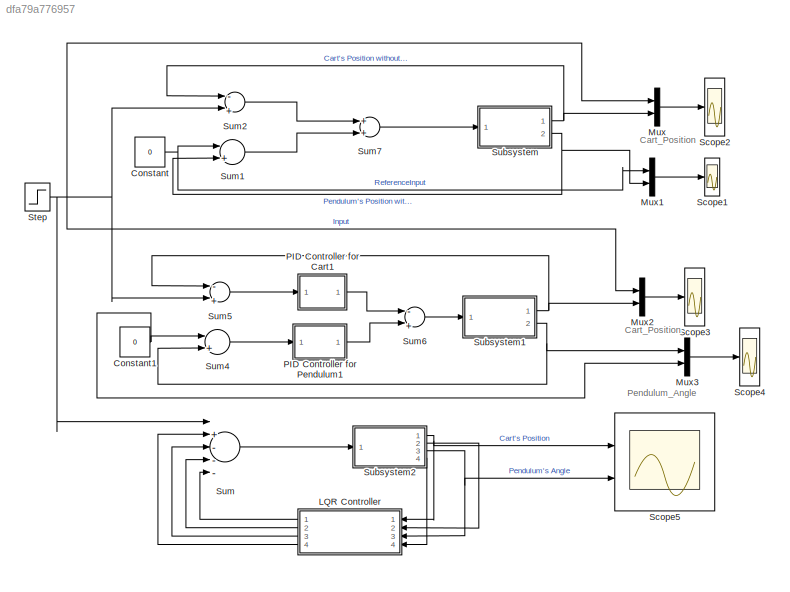
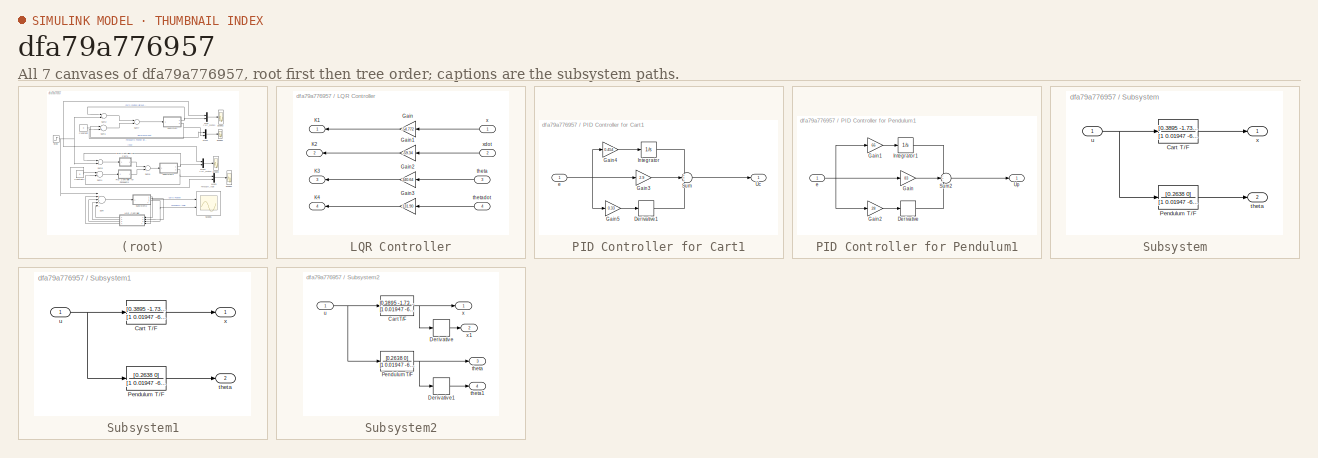
[diagram: thumbnail index - all 7 canvases of the model, root first then tree order]
MODEL slx_dfa79a776957
KIND model
BLOCK [Constant] Constant
  Value = 0
BLOCK [Constant] Constant1
  Value = 0
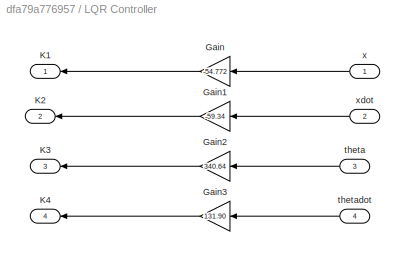
BLOCK [SubSystem] LQR Controller
  Ports = [4, 4]
  RequestExecContextInheritance = off
BLOCK [Gain] LQR Controller/Gain
  Gain = -54.772
  OutDataTypeStr = Inherit: Inherit via internal rule
  ParamDataTypeStr = Inherit: Inherit via internal rule
  SaturateOnIntegerOverflow = off
BLOCK [Gain] LQR Controller/Gain1
  Gain = -59.34
  OutDataTypeStr = Inherit: Inherit via internal rule
  ParamDataTypeStr = Inherit: Inherit via internal rule
  SaturateOnIntegerOverflow = off
BLOCK [Gain] LQR Controller/Gain2
  Gain = 340.64
  OutDataTypeStr = Inherit: Inherit via internal rule
  ParamDataTypeStr = Inherit: Inherit via internal rule
  SaturateOnIntegerOverflow = off
BLOCK [Gain] LQR Controller/Gain3
  Gain = 131.90
  OutDataTypeStr = Inherit: Inherit via internal rule
  ParamDataTypeStr = Inherit: Inherit via internal rule
  SaturateOnIntegerOverflow = off
BLOCK [Outport] LQR Controller/K1
  IconDisplay = Port number
BLOCK [Outport] LQR Controller/K2
  IconDisplay = Port number
  Port = 2
BLOCK [Outport] LQR Controller/K3
  IconDisplay = Port number
  Port = 3
BLOCK [Outport] LQR Controller/K4
  IconDisplay = Port number
  Port = 4
BLOCK [Inport] LQR Controller/theta
  IconDisplay = Port number
  Port = 3
BLOCK [Inport] LQR Controller/thetadot
  IconDisplay = Port number
  Port = 4
BLOCK [Inport] LQR Controller/x
  IconDisplay = Port number
BLOCK [Inport] LQR Controller/xdot
  IconDisplay = Port number
  Port = 2
BLOCK [Mux] Mux
  DisplayOption = bar
  Inputs = 2
  Ports = [2, 1]
BLOCK [Mux] Mux1
  DisplayOption = bar
  Inputs = 2
  Ports = [2, 1]
BLOCK [Mux] Mux2
  DisplayOption = bar
  Inputs = 2
  Ports = [2, 1]
BLOCK [Mux] Mux3
  DisplayOption = bar
  Inputs = 2
  Ports = [2, 1]
BLOCK [SubSystem] PID Controller for Cart1
  Ports = [1, 1]
  RequestExecContextInheritance = off
BLOCK [Derivative] PID Controller for Cart1/Derivative1
BLOCK [Gain] PID Controller for Cart1/Gain3
  Gain = 2.9
  OutDataTypeStr = Inherit: Inherit via internal rule
  ParamDataTypeStr = Inherit: Inherit via internal rule
  SaturateOnIntegerOverflow = off
BLOCK [Gain] PID Controller for Cart1/Gain4
  Gain = 0.454
  OutDataTypeStr = Inherit: Inherit via internal rule
  ParamDataTypeStr = Inherit: Inherit via internal rule
  SaturateOnIntegerOverflow = off
BLOCK [Gain] PID Controller for Cart1/Gain5
  Gain = 0.33
  OutDataTypeStr = Inherit: Inherit via internal rule
  ParamDataTypeStr = Inherit: Inherit via internal rule
  SaturateOnIntegerOverflow = off
BLOCK [Integrator] PID Controller for Cart1/Integrator
  Ports = [1, 1]
BLOCK [Sum] PID Controller for Cart1/Sum
  IconShape = round
  InputSameDT = off
  Inputs = +++
  OutDataTypeStr = Inherit: Inherit via internal rule
  Ports = [3, 1]
  SaturateOnIntegerOverflow = off
BLOCK [Outport] PID Controller for Cart1/Uc
  IconDisplay = Port number
BLOCK [Inport] PID Controller for Cart1/e
  IconDisplay = Port number
BLOCK [SubSystem] PID Controller for Pendulum1
  Ports = [1, 1]
  RequestExecContextInheritance = off
BLOCK [Derivative] PID Controller for Pendulum1/Derivative
BLOCK [Gain] PID Controller for Pendulum1/Gain
  Gain = 83
  OutDataTypeStr = Inherit: Inherit via internal rule
  ParamDataTypeStr = Inherit: Inherit via internal rule
  SaturateOnIntegerOverflow = off
BLOCK [Gain] PID Controller for Pendulum1/Gain1
  Gain = 66
  OutDataTypeStr = Inherit: Inherit via internal rule
  ParamDataTypeStr = Inherit: Inherit via internal rule
  SaturateOnIntegerOverflow = off
BLOCK [Gain] PID Controller for Pendulum1/Gain2
  Gain = 28
  OutDataTypeStr = Inherit: Inherit via internal rule
  ParamDataTypeStr = Inherit: Inherit via internal rule
  SaturateOnIntegerOverflow = off
BLOCK [Integrator] PID Controller for Pendulum1/Integrator1
  Ports = [1, 1]
BLOCK [Sum] PID Controller for Pendulum1/Sum2
  IconShape = round
  InputSameDT = off
  Inputs = +++
  OutDataTypeStr = Inherit: Inherit via internal rule
  Ports = [3, 1]
  SaturateOnIntegerOverflow = off
BLOCK [Outport] PID Controller for Pendulum1/Up
  IconDisplay = Port number
BLOCK [Inport] PID Controller for Pendulum1/e
  IconDisplay = Port number
BLOCK [Scope] Scope1
  DataFormat = StructureWithTime
  Floating = off
  NumInputPorts = 1
  Ports = [1]
  SampleTime = 0
  SaveToWorkspace = on
  ShowLegends = on
  ZoomMode = yonly
BLOCK [Scope] Scope2
  DataFormat = StructureWithTime
  Floating = off
  NumInputPorts = 1
  Ports = [1]
  SampleTime = 0
  SaveName = ScopeData1
  SaveToWorkspace = on
  ShowLegends = on
  TimeRange = 100
  YMax = 4.5e+106
  YMin = -4.999999999999999e+105
  ZoomMode = yonly
BLOCK [Scope] Scope3
  DataFormat = StructureWithTime
  Floating = off
  LegendLocations = 0.88534     0.89224    0.092511    0.053019
  NumInputPorts = 1
  Ports = [1]
  SampleTime = 0
  SaveName = ScopeData2
  SaveToWorkspace = on
  ShowLegends = on
  ZoomMode = yonly
BLOCK [Scope] Scope4
  DataFormat = StructureWithTime
  Floating = off
  NumInputPorts = 1
  Ports = [1]
  SampleTime = 0
  SaveName = ScopeData3
  SaveToWorkspace = on
  ShowLegends = on
  ZoomMode = yonly
BLOCK [Scope] Scope5
  DataFormat = StructureWithTime
  Floating = off
  NumInputPorts = 2
  Ports = [2]
  SampleTime = 0
  SaveName = LQR
  SaveToWorkspace = on
  ShowLegends = on
  TimeRange = 10
  YMax = 5~0.004
  YMin = -5~-0.002
  ZoomMode = yonly
BLOCK [Step] Step
  SampleTime = 0
BLOCK [SubSystem] Subsystem
  Ports = [1, 2]
  RequestExecContextInheritance = off
BLOCK [TransferFcn] Subsystem/Cart T//F
  Denominator = [1 0.01947 -6.807 -0.1294 0]
  Numerator = [0.3895 -1.73e-16 -2.588]
BLOCK [TransferFcn] Subsystem/Pendulum T//F
  Denominator = [1 0.01947 -6.807 -0.1294]
  Numerator = [0.2638 0]
BLOCK [Outport] Subsystem/theta
  IconDisplay = Port number
  Port = 2
BLOCK [Inport] Subsystem/u
  IconDisplay = Port number
BLOCK [Outport] Subsystem/x
  IconDisplay = Port number
BLOCK [SubSystem] Subsystem1
  Ports = [1, 2]
  RequestExecContextInheritance = off
BLOCK [TransferFcn] Subsystem1/Cart T//F
  Denominator = [1 0.01947 -6.807 -0.1294 0]
  Numerator = [0.3895 -1.73e-16 -2.588]
BLOCK [TransferFcn] Subsystem1/Pendulum T//F
  Denominator = [1 0.01947 -6.807 -0.1294]
  Numerator = [0.2638 0]
BLOCK [Outport] Subsystem1/theta
  IconDisplay = Port number
  Port = 2
BLOCK [Inport] Subsystem1/u
  IconDisplay = Port number
BLOCK [Outport] Subsystem1/x
  IconDisplay = Port number
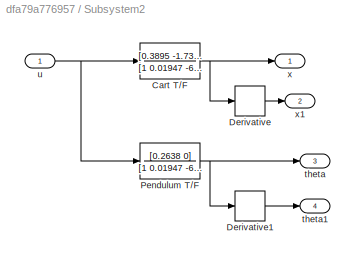
BLOCK [SubSystem] Subsystem2
  Ports = [1, 4]
  RequestExecContextInheritance = off
BLOCK [TransferFcn] Subsystem2/Cart T//F
  Denominator = [1 0.01947 -6.807 -0.1294 0]
  Numerator = [0.3895 -1.73e-16 -2.588]
BLOCK [Derivative] Subsystem2/Derivative
BLOCK [Derivative] Subsystem2/Derivative1
BLOCK [TransferFcn] Subsystem2/Pendulum T//F
  Denominator = [1 0.01947 -6.807 -0.1294]
  Numerator = [0.2638 0]
BLOCK [Outport] Subsystem2/theta
  IconDisplay = Port number
  Port = 3
BLOCK [Outport] Subsystem2/theta1
  IconDisplay = Port number
  Port = 4
BLOCK [Inport] Subsystem2/u
  IconDisplay = Port number
BLOCK [Outport] Subsystem2/x
  IconDisplay = Port number
BLOCK [Outport] Subsystem2/x1
  IconDisplay = Port number
  Port = 2
BLOCK [Sum] Sum
  InputSameDT = off
  Inputs = |+----
  OutDataTypeStr = Inherit: Inherit via internal rule
  Ports = [5, 1]
  SaturateOnIntegerOverflow = off
BLOCK [Sum] Sum1
  InputSameDT = off
  Inputs = |+-
  OutDataTypeStr = Inherit: Inherit via internal rule
  Ports = [2, 1]
  SaturateOnIntegerOverflow = off
BLOCK [Sum] Sum2
  InputSameDT = off
  Inputs = -|+
  OutDataTypeStr = Inherit: Inherit via internal rule
  Ports = [2, 1]
  SaturateOnIntegerOverflow = off
BLOCK [Sum] Sum4
  InputSameDT = off
  Inputs = |+-
  OutDataTypeStr = Inherit: Inherit via internal rule
  Ports = [2, 1]
  SaturateOnIntegerOverflow = off
BLOCK [Sum] Sum5
  InputSameDT = off
  Inputs = -|+
  OutDataTypeStr = Inherit: Inherit via internal rule
  Ports = [2, 1]
  SaturateOnIntegerOverflow = off
BLOCK [Sum] Sum6
  InputSameDT = off
  Inputs = -|+
  OutDataTypeStr = Inherit: Inherit via internal rule
  Ports = [2, 1]
  SaturateOnIntegerOverflow = off
BLOCK [Sum] Sum7
  InputSameDT = off
  OutDataTypeStr = Inherit: Inherit via internal rule
  Ports = [2, 1]
  SaturateOnIntegerOverflow = off
ANNOTATION (root): Cart_Position
ANNOTATION (root): Pendulum_Angle
NET Constant1:1 -> Mux3:2, Sum4:1
NET Constant:1 -> Mux1:1, Sum1:1
LINE LQR Controller/Gain1:1 -> LQR Controller/K2:1
LINE LQR Controller/Gain2:1 -> LQR Controller/K3:1
LINE LQR Controller/Gain3:1 -> LQR Controller/K4:1
LINE LQR Controller/Gain:1 -> LQR Controller/K1:1
LINE LQR Controller/theta:1 -> LQR Controller/Gain2:1
LINE LQR Controller/thetadot:1 -> LQR Controller/Gain3:1
LINE LQR Controller/x:1 -> LQR Controller/Gain:1
LINE LQR Controller/xdot:1 -> LQR Controller/Gain1:1
LINE LQR Controller:1 -> Sum:5
LINE LQR Controller:2 -> Sum:4
LINE LQR Controller:3 -> Sum:3
LINE LQR Controller:4 -> Sum:2
LINE Mux1:1 -> Scope1:1
LINE Mux2:1 -> Scope3:1
LINE Mux3:1 -> Scope4:1
LINE Mux:1 -> Scope2:1
LINE PID Controller for Cart1/Derivative1:1 -> PID Controller for Cart1/Sum:3
LINE PID Controller for Cart1/Gain3:1 -> PID Controller for Cart1/Sum:2
LINE PID Controller for Cart1/Gain4:1 -> PID Controller for Cart1/Integrator:1
LINE PID Controller for Cart1/Gain5:1 -> PID Controller for Cart1/Derivative1:1
LINE PID Controller for Cart1/Integrator:1 -> PID Controller for Cart1/Sum:1
LINE PID Controller for Cart1/Sum:1 -> PID Controller for Cart1/Uc:1
NET PID Controller for Cart1/e:1 -> PID Controller for Cart1/Gain3:1, PID Controller for Cart1/Gain4:1, PID Controller for Cart1/Gain5:1
LINE PID Controller for Cart1:1 -> Sum6:1
LINE PID Controller for Pendulum1/Derivative:1 -> PID Controller for Pendulum1/Sum2:3
LINE PID Controller for Pendulum1/Gain1:1 -> PID Controller for Pendulum1/Integrator1:1
LINE PID Controller for Pendulum1/Gain2:1 -> PID Controller for Pendulum1/Derivative:1
LINE PID Controller for Pendulum1/Gain:1 -> PID Controller for Pendulum1/Sum2:2
LINE PID Controller for Pendulum1/Integrator1:1 -> PID Controller for Pendulum1/Sum2:1
LINE PID Controller for Pendulum1/Sum2:1 -> PID Controller for Pendulum1/Up:1
NET PID Controller for Pendulum1/e:1 -> PID Controller for Pendulum1/Gain1:1, PID Controller for Pendulum1/Gain2:1, PID Controller for Pendulum1/Gain:1
LINE PID Controller for Pendulum1:1 -> Sum6:2
NET Step:1 -> Mux2:1, Mux:1, Sum2:2, Sum5:2, Sum:1
LINE Subsystem/Cart T//F:1 -> Subsystem/x:1
LINE Subsystem/Pendulum T//F:1 -> Subsystem/theta:1
NET Subsystem/u:1 -> Subsystem/Cart T//F:1, Subsystem/Pendulum T//F:1
LINE Subsystem1/Cart T//F:1 -> Subsystem1/x:1
LINE Subsystem1/Pendulum T//F:1 -> Subsystem1/theta:1
NET Subsystem1/u:1 -> Subsystem1/Cart T//F:1, Subsystem1/Pendulum T//F:1
NET Subsystem1:1 -> Mux2:2, Sum5:1
NET Subsystem1:2 -> Mux3:1, Sum4:2
NET Subsystem2/Cart T//F:1 -> Subsystem2/Derivative:1, Subsystem2/x:1
LINE Subsystem2/Derivative1:1 -> Subsystem2/theta1:1
LINE Subsystem2/Derivative:1 -> Subsystem2/x1:1
NET Subsystem2/Pendulum T//F:1 -> Subsystem2/Derivative1:1, Subsystem2/theta:1
NET Subsystem2/u:1 -> Subsystem2/Cart T//F:1, Subsystem2/Pendulum T//F:1
NET Subsystem2:1 -> LQR Controller:1, Scope5:1
LINE Subsystem2:2 -> LQR Controller:2
NET Subsystem2:3 -> LQR Controller:3, Scope5:2
LINE Subsystem2:4 -> LQR Controller:4
NET Subsystem:1 -> Mux:2, Sum2:1
NET Subsystem:2 -> Mux1:2, Sum1:2
LINE Sum1:1 -> Sum7:2
LINE Sum2:1 -> Sum7:1
LINE Sum4:1 -> PID Controller for Pendulum1:1
LINE Sum5:1 -> PID Controller for Cart1:1
LINE Sum6:1 -> Subsystem1:1
LINE Sum7:1 -> Subsystem:1
LINE Sum:1 -> Subsystem2:1
note: NET lines group one-source signal fan-out (src -> all destinations, sorted); 1:1 wires keep LINE
